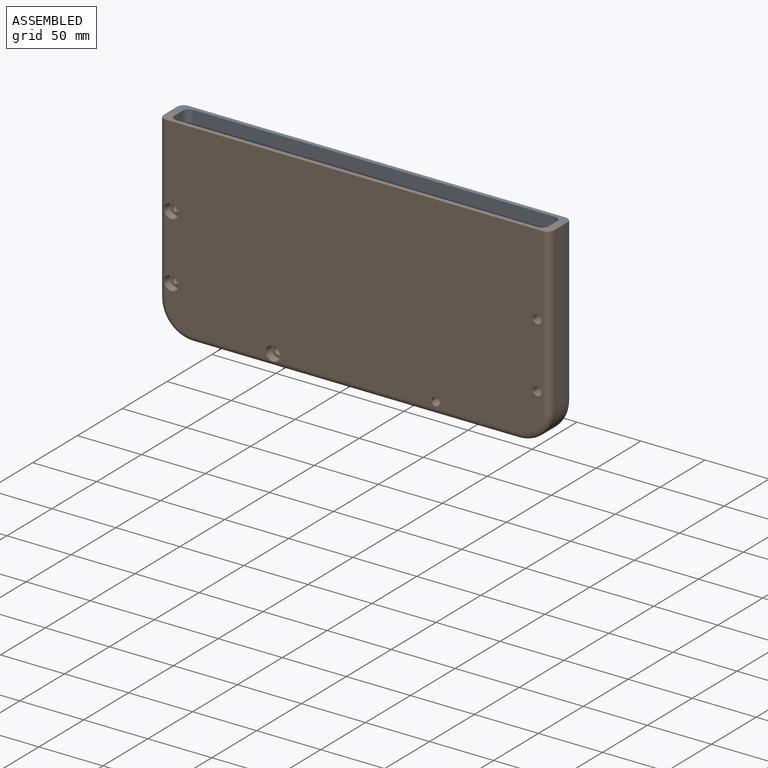
[diagram: assembled view]
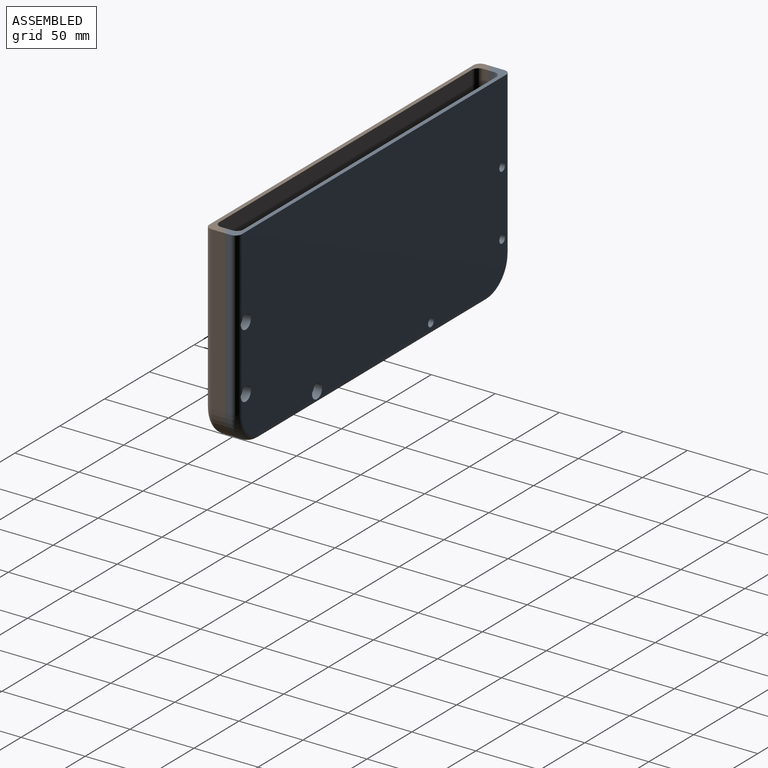
[diagram: assembled view, second angle]
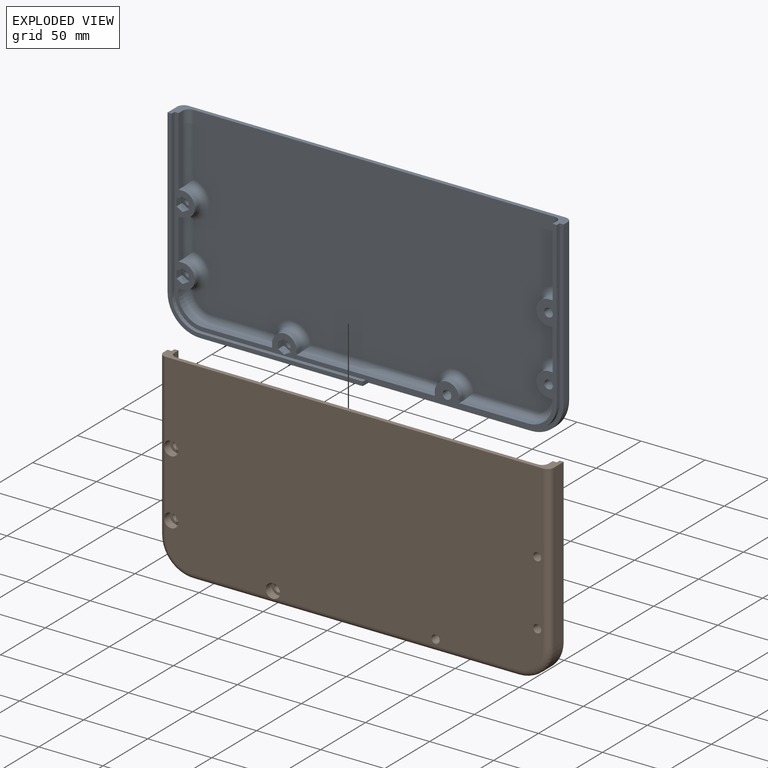
[diagram: exploded view]
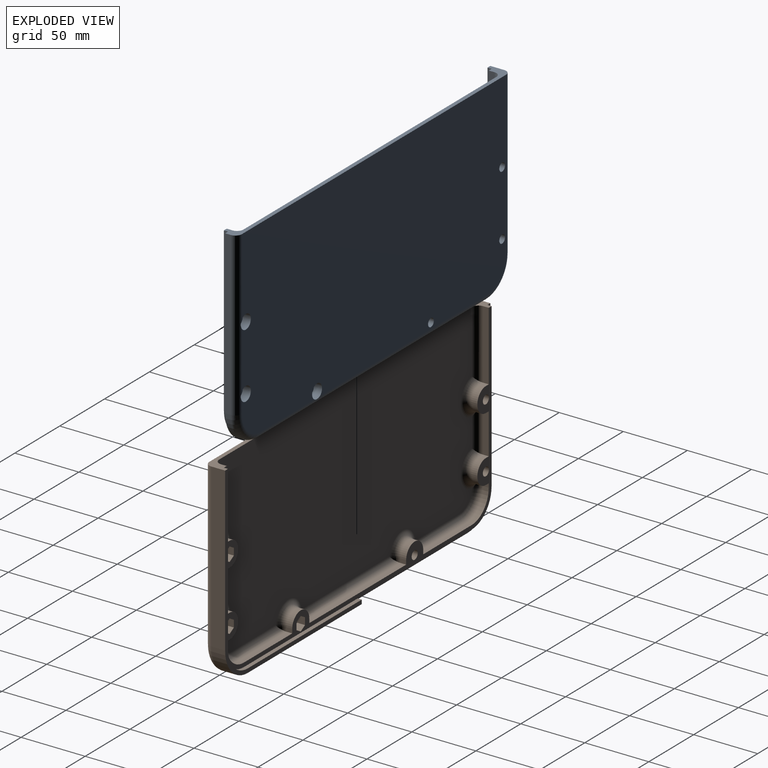
[diagram: exploded view, second angle]
ASSEMBLY  parts=2 mates=2
PART A: 114 faces, bbox 309x15.9x154.5 mm
  f0: plane 298.45x149.23mm, normal (0,-1,0), area 2693.5mm2, adj f5,f7,f9,f10,f11,f12,f13,f18
  f1: cylinder r=3.17mm len=6.35mm, axis (0,1,0), area 126.7mm2, adj f17,f79
  f2: cylinder r=3.17mm len=6.35mm, axis (0,1,0), area 126.7mm2, adj f17,f72
  f3: cylinder r=3.17mm len=6.35mm, axis (0,1,0), area 126.7mm2, adj f17,f65
  f4: plane 127x4.45mm, normal (1,0,0), area 564.5mm2, adj f5,f6,f58,f83
  f5: plane 304.8x15.88mm, normal (0,0,1), area 1088.7mm2, adj f0,f4,f8,f13,f14,f17,f22,f53
  f6: cylinder r=25.4mm len=25.4mm, axis (0,1,0), area 177.3mm2, adj f4,f16,f58,f84
  f7: plane 53.98x4.45mm, normal (0,0,1), area 239.9mm2, adj f0,f21,f38,f113
  f8: plane 281.94x140.97mm, normal (0,-1,0), area 37984mm2, adj f5,f86,f88,f91,f93,f94,f95,f98
  f9: plane 107.95x4.45mm, normal (0,0,1), area 479.8mm2, adj f0,f36,f40,f107
  f10: plane 31.75x4.45mm, normal (-1,0,0), area 141.1mm2, adj f0,f31,f32,f103
  f11: plane 4.45x3.18mm, normal (-1,0,0), area 14.1mm2, adj f0,f21,f29,f109
  f12: plane 31.75x4.45mm, normal (1,0,0), area 141.1mm2, adj f0,f25,f28,f91
  f13: plane 53.98x4.45mm, normal (1,0,0), area 239.9mm2, adj f0,f5,f24,f86
  f14: plane 127x10.8mm, normal (-1,0,0), area 1371mm2, adj f5,f15,f54,f80
  f15: cylinder r=25.4mm len=25.4mm, axis (0,1,0), area 430.7mm2, adj f14,f16,f54,f81
  f16: plane 254x10.8mm, normal (0,0,-1), area 1935.5mm2, adj f6,f15,f50,f54,f58,f82
  f17: plane 294.64x147.32mm, normal (0,1,0), area 42858.3mm2, adj f1,f2,f3,f5,f43,f46,f49,f80
  f18: plane 4.45x3.18mm, normal (1,0,0), area 14.1mm2, adj f0,f19,f26,f92
  f19: cylinder r=19.05mm len=19.05mm, axis (0,1,0), area 133mm2, adj f0,f18,f20,f94
  f20: plane 53.98x4.45mm, normal (0,0,1), area 239.9mm2, adj f0,f19,f35,f98
  f21: cylinder r=19.05mm len=19.05mm, axis (0,1,0), area 133mm2, adj f0,f7,f11,f112
  f22: plane 53.98x4.45mm, normal (-1,0,0), area 239.9mm2, adj f0,f5,f33,f95
  f23: cylinder r=9.53mm len=19.05mm, axis (0,-1,0), area 133mm2, adj f0,f24,f25,f88
  f24: plane 4.45x3.18mm, normal (0,0,1), area 14.1mm2, adj f0,f13,f23,f85
  f25: plane 4.45x3.18mm, normal (0,0,-1), area 14.1mm2, adj f0,f12,f23,f87
  f26: plane 4.45x3.18mm, normal (0,0,-1), area 14.1mm2, adj f0,f18,f27,f89
  f27: cylinder r=9.53mm len=19.05mm, axis (0,-1,0), area 133mm2, adj f0,f26,f28,f93
  f28: plane 4.45x3.18mm, normal (0,0,1), area 14.1mm2, adj f0,f12,f27,f90
  f29: plane 4.45x3.18mm, normal (0,0,-1), area 14.1mm2, adj f0,f11,f30,f105
  f30: cylinder r=9.53mm len=19.05mm, axis (0,-1,0), area 133mm2, adj f0,f29,f31,f108
  f31: plane 4.45x3.18mm, normal (0,0,1), area 14.1mm2, adj f0,f10,f30,f104
  f32: plane 4.45x3.18mm, normal (0,0,-1), area 14.1mm2, adj f0,f10,f34,f100
  f33: plane 4.45x3.18mm, normal (0,0,1), area 14.1mm2, adj f0,f22,f34,f96
  f34: cylinder r=9.53mm len=19.05mm, axis (0,-1,0), area 133mm2, adj f0,f32,f33,f99
  f35: plane 4.45x3.18mm, normal (-1,0,0), area 14.1mm2, adj f0,f20,f37,f97
  f36: plane 4.45x3.18mm, normal (1,0,0), area 14.1mm2, adj f0,f9,f37,f101
  f37: cylinder r=9.53mm len=19.05mm, axis (0,-1,0), area 133mm2, adj f0,f35,f36,f102
  f38: plane 4.45x3.18mm, normal (1,0,0), area 14.1mm2, adj f0,f7,f39,f110
  f39: cylinder r=9.53mm len=19.05mm, axis (0,-1,0), area 133mm2, adj f0,f38,f40,f111
  f40: plane 4.45x3.18mm, normal (-1,0,0), area 14.1mm2, adj f0,f9,f39,f106
  f41: cylinder r=3.38mm len=6.76mm, axis (0,1,0), area 134.8mm2, adj f0,f42
  f42: plane 11.11x11.11mm, normal (0,1,0), area 61.1mm2, adj f41,f43
  f43: cylinder r=5.56mm len=11.11mm, axis (0,1,0), area 221.2mm2, adj f17,f42,f82
  f44: cylinder r=3.38mm len=6.76mm, axis (0,1,0), area 134.8mm2, adj f0,f45
  f45: plane 11.11x11.11mm, normal (0,1,0), area 61.1mm2, adj f44,f46
  f46: cylinder r=5.56mm len=11.11mm, axis (0,1,0), area 221.2mm2, adj f17,f45,f83
  f47: cylinder r=3.38mm len=6.76mm, axis (0,1,0), area 134.8mm2, adj f0,f48
  f48: plane 11.11x11.11mm, normal (0,1,0), area 61.1mm2, adj f47,f49
  f49: cylinder r=5.56mm len=11.11mm, axis (0,1,0), area 221.2mm2, adj f17,f48,f83
  f50: plane 6.35x3.18mm, normal (1,0,0), area 20.2mm2, adj f16,f51,f54,f55,f58
  f51: plane 127x3.18mm, normal (0,0,1), area 403.2mm2, adj f0,f50,f52,f54
  f52: cylinder r=22.23mm len=22.23mm, axis (0,1,0), area 110.8mm2, adj f0,f51,f53,f54
  f53: plane 127x3.18mm, normal (1,0,0), area 403.2mm2, adj f0,f5,f52,f54
  f54: plane 152.4x152.4mm, normal (0,-1,0), area 925.2mm2, adj f5,f14,f15,f16,f50,f51,f52,f53
  f55: plane 127x3.18mm, normal (0,0,-1), area 403.2mm2, adj f0,f50,f57,f58
  f56: plane 127x3.18mm, normal (1,0,0), area 403.2mm2, adj f0,f5,f57,f58
  f57: cylinder r=22.23mm len=22.23mm, axis (0,-1,0), area 110.8mm2, adj f0,f55,f56,f58
  f58: plane 152.4x152.4mm, normal (0,-1,0), area 925.2mm2, adj f4,f5,f6,f16,f50,f55,f56,f57
  f59: plane 6.35x4.76mm, normal (0.5,0,-0.87), area 34.9mm2, adj f0,f60,f64,f65
  f60: plane 6.35x5.5mm, normal (1,0,0), area 34.9mm2, adj f0,f59,f61,f65
  f61: plane 6.35x4.76mm, normal (0.5,0,0.87), area 34.9mm2, adj f0,f60,f62,f65
  f62: plane 6.35x4.76mm, normal (-0.5,0,0.87), area 34.9mm2, adj f0,f61,f63,f65
  f63: plane 6.35x5.5mm, normal (-1,0,0), area 34.9mm2, adj f0,f62,f64,f65
  f64: plane 6.35x4.76mm, normal (-0.5,0,-0.87), area 34.9mm2, adj f0,f59,f63,f65
  f65: plane 11x9.53mm, normal (0,-1,0), area 46.9mm2, adj f3,f59,f60,f61,f62,f63,f64
  f66: plane 6.35x4.76mm, normal (0.5,0,-0.87), area 34.9mm2, adj f0,f67,f71,f72
  f67: plane 6.35x5.5mm, normal (1,0,0), area 34.9mm2, adj f0,f66,f68,f72
  f68: plane 6.35x4.76mm, normal (0.5,0,0.87), area 34.9mm2, adj f0,f67,f69,f72
  f69: plane 6.35x4.76mm, normal (-0.5,0,0.87), area 34.9mm2, adj f0,f68,f70,f72
  f70: plane 6.35x5.5mm, normal (-1,0,0), area 34.9mm2, adj f0,f69,f71,f72
  f71: plane 6.35x4.76mm, normal (-0.5,0,-0.87), area 34.9mm2, adj f0,f66,f70,f72
  f72: plane 11x9.53mm, normal (0,-1,0), area 46.9mm2, adj f2,f66,f67,f68,f69,f70,f71
  f73: plane 6.35x4.76mm, normal (0.5,0,-0.87), area 34.9mm2, adj f0,f74,f78,f79
  f74: plane 6.35x5.5mm, normal (1,0,0), area 34.9mm2, adj f0,f73,f75,f79
  f75: plane 6.35x4.76mm, normal (0.5,0,0.87), area 34.9mm2, adj f0,f74,f76,f79
  f76: plane 6.35x4.76mm, normal (-0.5,0,0.87), area 34.9mm2, adj f0,f75,f77,f79
  f77: plane 6.35x5.5mm, normal (-1,0,0), area 34.9mm2, adj f0,f76,f78,f79
  f78: plane 6.35x4.76mm, normal (-0.5,0,-0.87), area 34.9mm2, adj f0,f73,f77,f79
  f79: plane 11x9.53mm, normal (0,-1,0), area 46.9mm2, adj f1,f73,f74,f75,f76,f77,f78
  f80: cylinder r=5.08mm len=127mm, axis (0,0,-1), area 1013.4mm2, adj f5,f14,f17,f81
  f81: torus R=20.32mm, axis (0,-1,0), area 295.2mm2, adj f15,f17,f80,f82
  f82: cylinder r=5.08mm len=254mm, axis (1,0,0), area 2021.8mm2, adj f16,f17,f43,f81,f84
  f83: cylinder r=5.08mm len=127mm, axis (0,0,1), area 1003.3mm2, adj f4,f5,f17,f46,f49,f84
  f84: torus R=20.32mm, axis (0,-1,0), area 295.2mm2, adj f6,f17,f82,f83
  f85: cylinder r=5.08mm len=4.71mm, axis (1,0,0), area 12.4mm2, adj f24,f86,f88
  f86: cylinder r=5.08mm len=53.98mm, axis (0,0,1), area 416.1mm2, adj f5,f8,f13,f85,f88
  f87: cylinder r=5.08mm len=4.71mm, axis (1,0,0), area 12.4mm2, adj f25,f88,f91
  f88: torus R=14.61mm, axis (0,-1,0), area 281.5mm2, adj f8,f23,f85,f86,f87,f91
  f89: cylinder r=5.08mm len=4.71mm, axis (1,0,0), area 12.4mm2, adj f26,f92,f93
  f90: cylinder r=5.08mm len=4.71mm, axis (1,0,0), area 12.4mm2, adj f28,f91,f93
  f91: cylinder r=5.08mm len=31.75mm, axis (0,0,1), area 224.1mm2, adj f8,f12,f87,f88,f90,f93
  f92: cylinder r=5.08mm len=4.71mm, axis (0,0,1), area 12.4mm2, adj f18,f89,f94
  f93: torus R=14.61mm, axis (0,-1,0), area 281.4mm2, adj f8,f27,f89,f90,f91,f94
  f94: torus R=13.97mm, axis (0,-1,0), area 213.8mm2, adj f8,f19,f92,f93,f98
  f95: cylinder r=5.08mm len=53.98mm, axis (0,0,-1), area 416.1mm2, adj f5,f8,f22,f96,f99
  f96: cylinder r=5.08mm len=4.71mm, axis (1,0,0), area 12.4mm2, adj f33,f95,f99
  f97: cylinder r=5.08mm len=4.71mm, axis (0,0,-1), area 12.4mm2, adj f35,f98,f102
  f98: cylinder r=5.08mm len=53.98mm, axis (-1,0,0), area 416.1mm2, adj f8,f20,f94,f97,f102
  f99: torus R=14.61mm, axis (0,-1,0), area 281.5mm2, adj f8,f34,f95,f96,f100,f103
  f100: cylinder r=5.08mm len=4.71mm, axis (1,0,0), area 12.4mm2, adj f32,f99,f103
  f101: cylinder r=5.08mm len=4.71mm, axis (0,0,-1), area 12.4mm2, adj f36,f102,f107
  f102: torus R=14.61mm, axis (0,-1,0), area 281.5mm2, adj f8,f37,f97,f98,f101,f107
  f103: cylinder r=5.08mm len=31.75mm, axis (0,0,-1), area 224.1mm2, adj f8,f10,f99,f100,f104,f108
  f104: cylinder r=5.08mm len=4.71mm, axis (1,0,0), area 12.4mm2, adj f31,f103,f108
  f105: cylinder r=5.08mm len=4.71mm, axis (1,0,0), area 12.4mm2, adj f29,f108,f109
  f106: cylinder r=5.08mm len=4.71mm, axis (0,0,1), area 12.4mm2, adj f40,f107,f111
  f107: cylinder r=5.08mm len=107.95mm, axis (-1,0,0), area 832.1mm2, adj f8,f9,f101,f102,f106,f111
  f108: torus R=14.61mm, axis (0,-1,0), area 281.4mm2, adj f8,f30,f103,f104,f105,f112
  f109: cylinder r=5.08mm len=4.71mm, axis (0,0,1), area 12.4mm2, adj f11,f105,f112
  f110: cylinder r=5.08mm len=4.71mm, axis (0,0,1), area 12.4mm2, adj f38,f111,f113
  f111: torus R=14.61mm, axis (0,-1,0), area 281.5mm2, adj f8,f39,f106,f107,f110,f113
  f112: torus R=13.97mm, axis (0,-1,0), area 213.8mm2, adj f8,f21,f108,f109,f113
  f113: cylinder r=5.08mm len=53.98mm, axis (-1,0,0), area 416.1mm2, adj f7,f8,f110,f111,f112
PART B: same geometry as A
PLACE A t=(-31.13,178.69,11.18)mm
PLACE B rot(axis=(0,0,1),180deg) t=(-31.13,153.29,11.18)mm
MATE planar B.f16 <-> A.f16  axis (0,0,-1) through (-4.67,162.84,-65.02)mm
MATE planar B.f14 <-> A.f4  axis (1,0,0) through (121.27,163.77,23.88)mm
